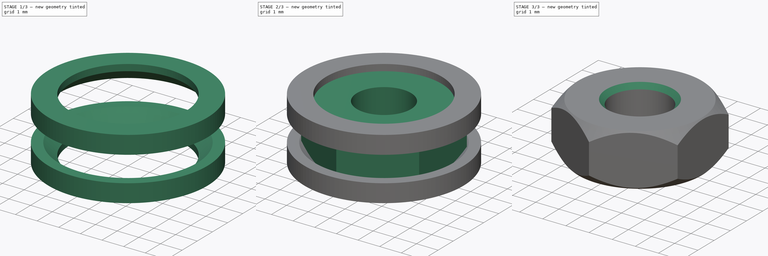
[diagram: build sequence overview — one tinted view per stage of 3, left to right]
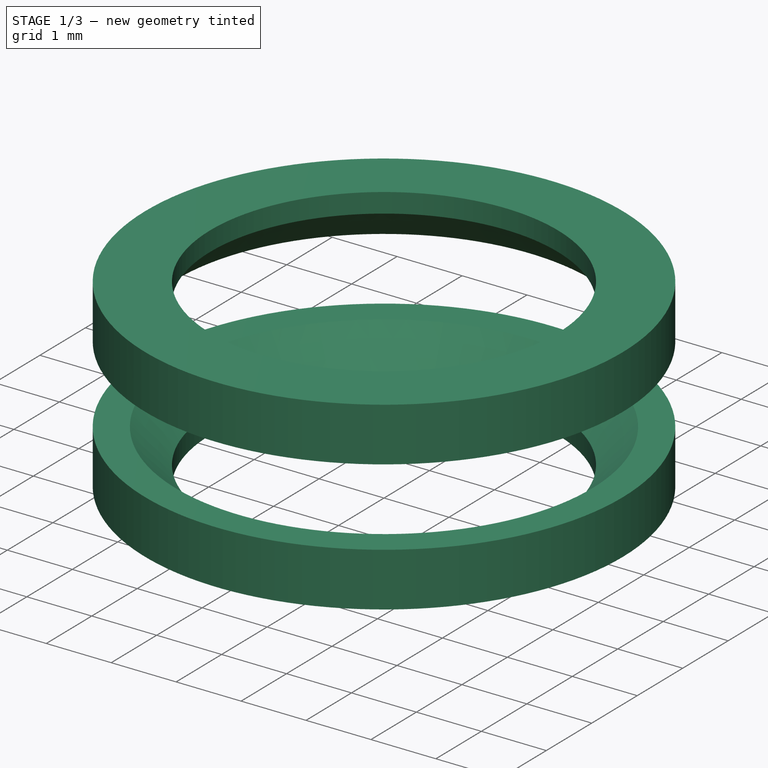
[diagram: stage 1 of 3 — iso view after this stage's code; geometry added in this stage tinted green]
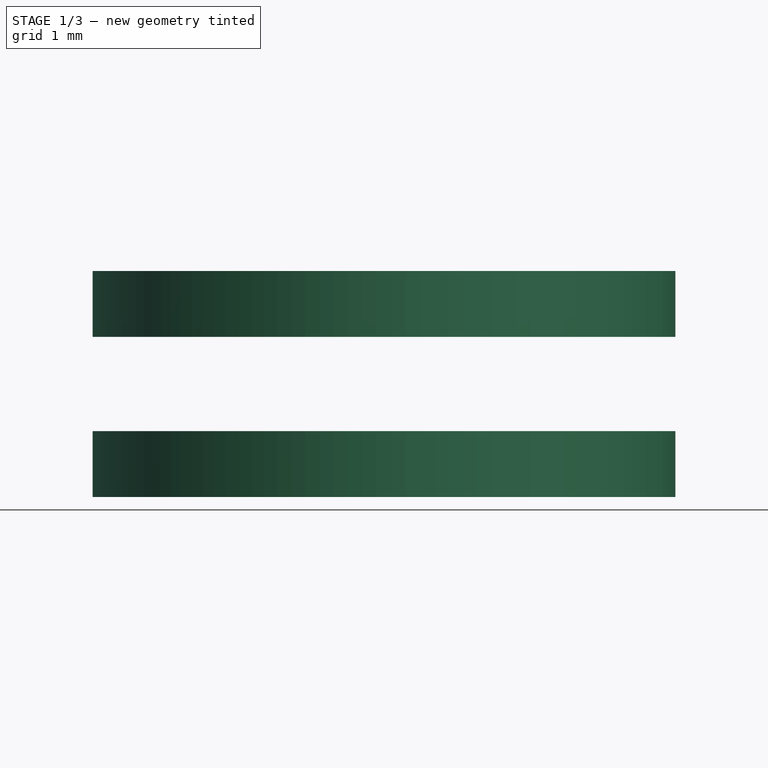
[diagram: stage 1 of 3 — front view after this stage's code; geometry added in this stage tinted green]
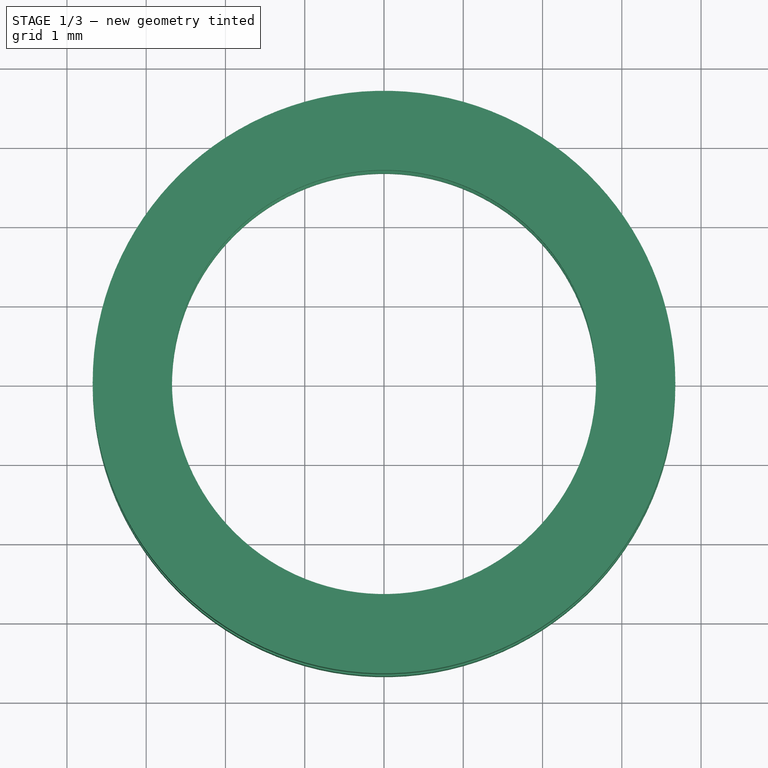
[diagram: stage 1 of 3 — top view after this stage's code; geometry added in this stage tinted green]
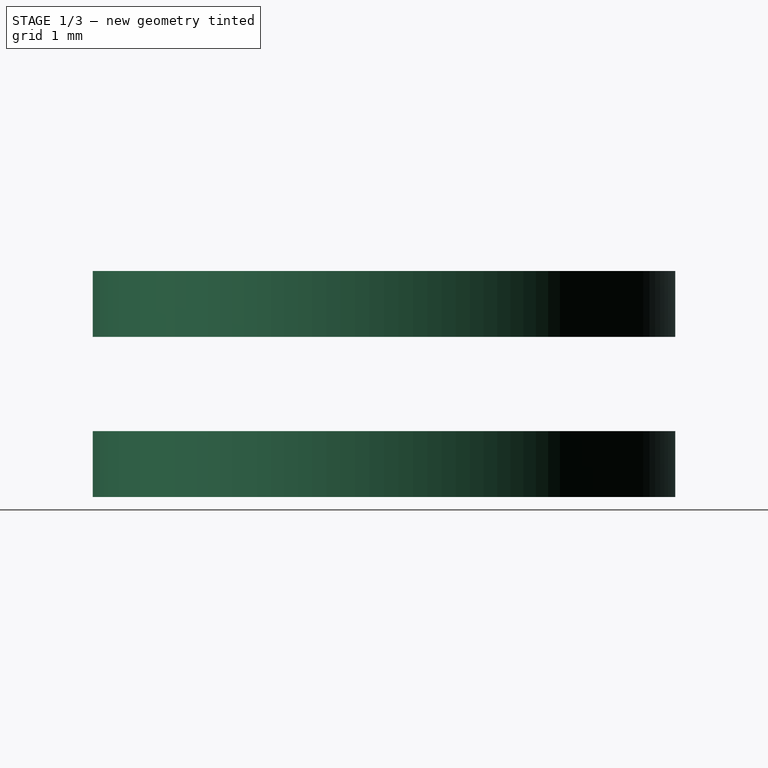
[diagram: stage 1 of 3 — right view after this stage's code; geometry added in this stage tinted green]
FCSTD DOCUMENT  (FreeCAD 0.14R3702 (Git))
Label: M3-hex-nut
License: CC-BY 3.0
LicenseURL: http://creativecommons.org/licenses/by/3.0/
objects: Sketcher::SketchObject×3, PartDesign::Chamfer×2, PartDesign::Pad×1, PartDesign::Pocket×1, Part::Feature×1, PartDesign::Revolution×1, Part::Mirroring×1, Part::MultiFuse×1, Part::Cut×1
note: 15 computed .brp shape members not serialized (recipe doc carries the construction recipe); baked Part::Feature solids carry a one-line shape summary decoded from their .brp

FEATURE [Part::Feature] Face  label="nut-section"
  shape: bbox 1.475 x 2e-07 x 2.25 mm, 1 faces, 0 solids (baked)
FEATURE [Sketcher::SketchObject] Sketch002  label="nut-chamfer-sketch"
  ExternalGeometry = -> [Face]
  Placement = pos=(0,0,0) rot=(0,0.707107,0.707107;3.14159rad)
  Support = -> Face [Face1]
  sketch-geometry (5):
    g0: LineSegment StartX=2.675 StartY=1.125 StartZ=0 EndX=2.675 EndY=1.425 EndZ=0
    g1: LineSegment StartX=2.675 StartY=1.425 StartZ=0 EndX=3.675 EndY=1.425 EndZ=0
    g2: LineSegment StartX=3.675 StartY=1.425 StartZ=0 EndX=3.675 EndY=0.594349 EndZ=0
    g3: LineSegment StartX=3.20565 StartY=0.594349 StartZ=0 EndX=3.675 EndY=0.594349 EndZ=0
    g4: LineSegment StartX=2.675 StartY=1.125 StartZ=0 EndX=3.20565 EndY=0.594349 EndZ=0
  constraints (14):
    c: Vertical(g0)
    c: Coincident(g0,g1)
    c: Horizontal(g1)
    c: Coincident(g1,g2)
    c: Vertical(g2)
    c: DistanceX(g1) = 1
    c: DistanceY(g0) = 0.3
    c: Horizontal(g3)
    c: Coincident(g3,g2)
    c: Coincident(g4,g0)
    c: Coincident(g4,g3)
    c: Angle(g-3,g4) = 2.35619
    c: PointOnObject(g0,g-3)
    c: DistanceX(g0,g-3) = 0.05
FEATURE [PartDesign::Revolution] Revolution  label="nut-chamfer"
  Angle = 360
  Axis = (0,0,1)
  Base = (0,0,0)
  ReferenceAxis = -> Sketch002 [V_Axis]
  Reversed = true
  Sketch = -> Sketch002
FEATURE [Part::Mirroring] Part__Mirroring  label="nut-chamfer (Mirror #1)"
  Base = (0,0,0)
  Normal = (0,0,1)
  Source = -> Revolution
FEATURE [Part::MultiFuse] Fusion  label="top-bottom-chamfer"
  Shapes = -> [Part__Mirroring,Revolution]
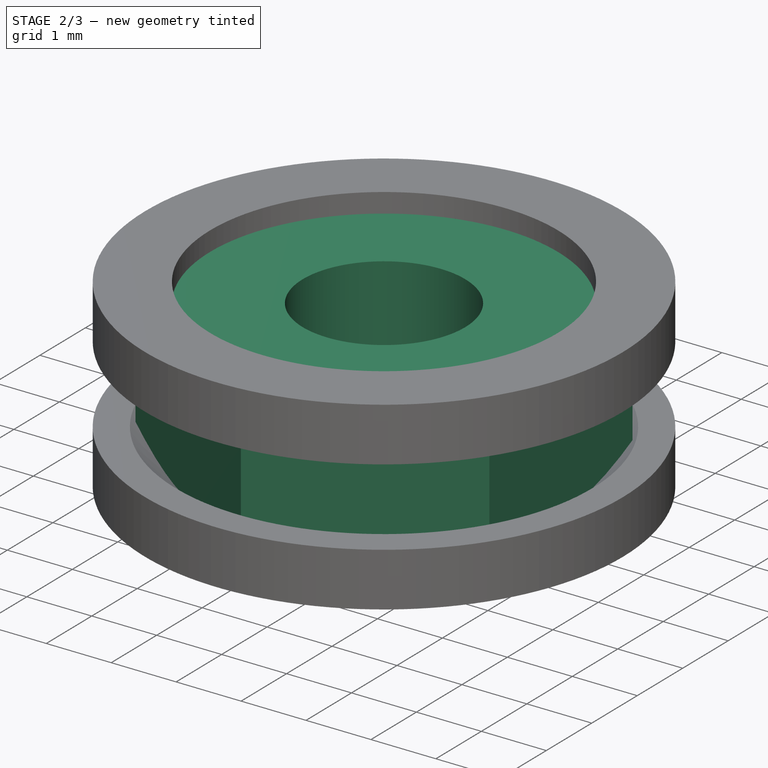
[diagram: stage 2 of 3 — iso view after this stage's code; geometry added in this stage tinted green]
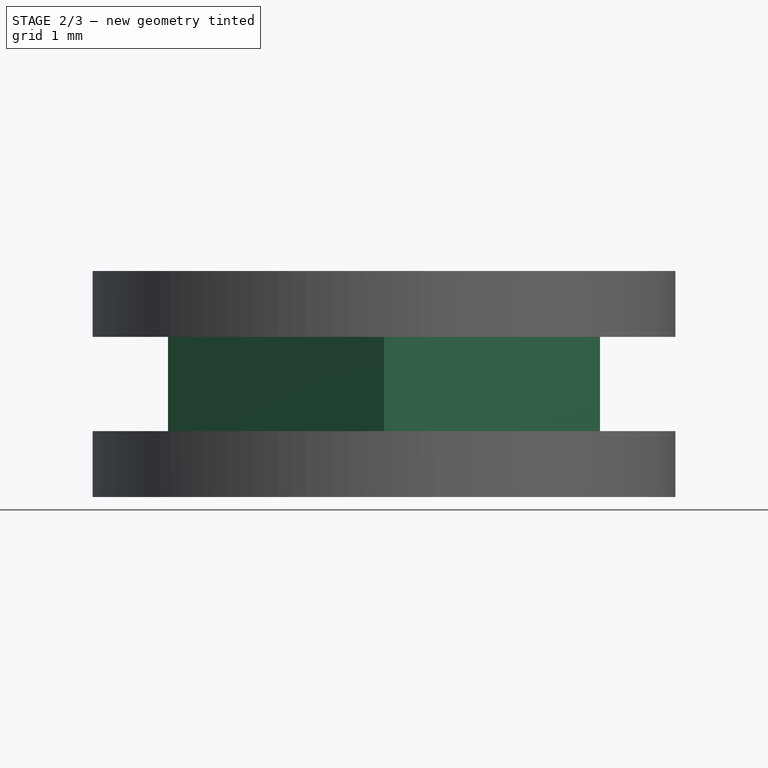
[diagram: stage 2 of 3 — front view after this stage's code; geometry added in this stage tinted green]
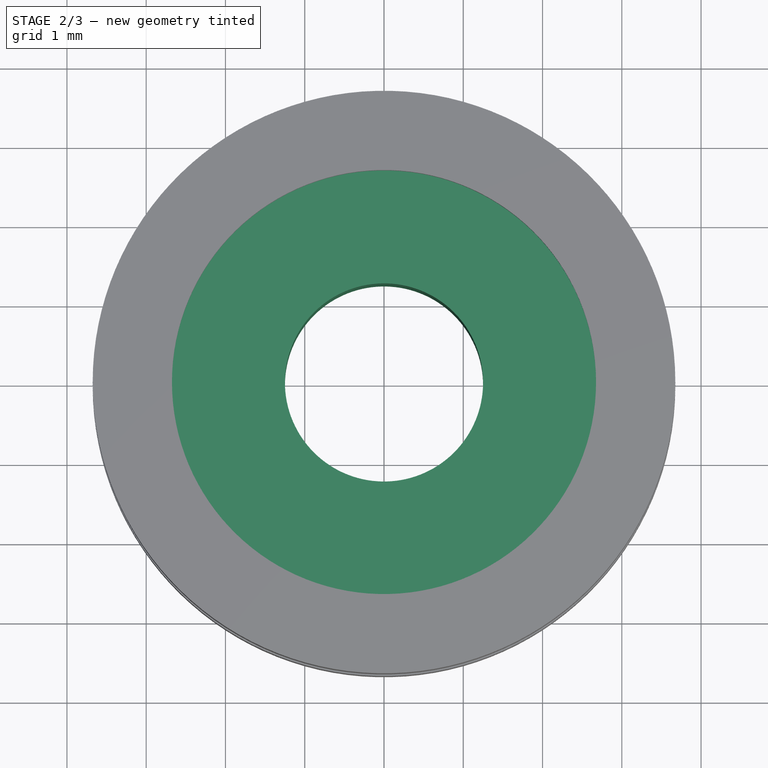
[diagram: stage 2 of 3 — top view after this stage's code; geometry added in this stage tinted green]
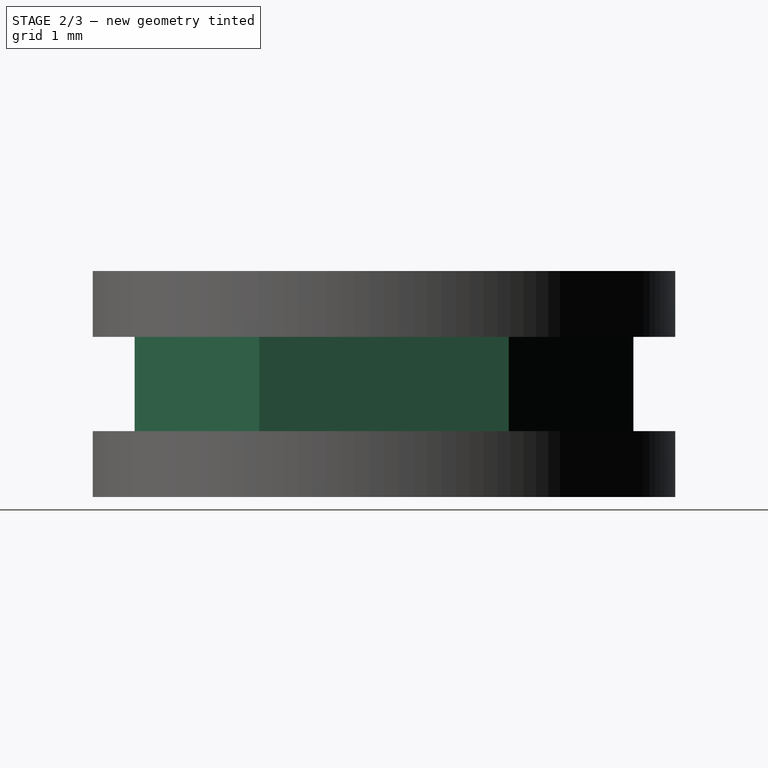
[diagram: stage 2 of 3 — right view after this stage's code; geometry added in this stage tinted green]
FEATURE [Sketcher::SketchObject] Sketch  label="M3-nut-body-sketch"
  sketch-geometry (6):
    g0: LineSegment StartX=0 StartY=3.14656 StartZ=0 EndX=-2.725 EndY=1.57328 EndZ=0
    g1: LineSegment StartX=-2.725 StartY=1.57328 StartZ=0 EndX=-2.725 EndY=-1.57328 EndZ=0
    g2: LineSegment StartX=-2.725 StartY=-1.57328 StartZ=0 EndX=0 EndY=-3.14656 EndZ=0
    g3: LineSegment StartX=0 StartY=3.14656 StartZ=0 EndX=2.725 EndY=1.57328 EndZ=0
    g4: LineSegment StartX=2.725 StartY=1.57328 StartZ=0 EndX=2.725 EndY=-1.57328 EndZ=0
    g5: LineSegment StartX=2.725 StartY=-1.57328 StartZ=0 EndX=0 EndY=-3.14656 EndZ=0
  constraints (15):
    c: Coincident(g0,g1)
    c: Coincident(g1,g2)
    c: Symmetric(g0,g1,g-1)
    c: Symmetric(g0,g2,g-1)
    c: PointOnObject(g0,g-2)
    c: Angle(g-2,g0) = 2.0944
    c: Equal(g0,g1)
    c: Coincident(g3,g4)
    c: Vertical(g4)
    c: Coincident(g4,g5)
    c: Coincident(g5,g2)
    c: Coincident(g3,g0)
    c: Symmetric(g0,g3,g-2)
    c: Symmetric(g4,g1,g-2)
    c: DistanceX(g0,g3) = 5.45
FEATURE [PartDesign::Pad] Pad  label="M3-nut-body"
  Length = 2.25
  Length2 = 100
  Midplane = true
  Sketch = -> Sketch
  Type = 0
FEATURE [Sketcher::SketchObject] Sketch001  label="M3-drill-sketch"
  Placement = pos=(0,0,1.125) rot=(0,0,1;0rad)
  Support = -> Pad [Face8]
  sketch-geometry (1):
    g0: Circle CenterX=0 CenterY=0 CenterZ=0 NormalX=0 NormalY=0 NormalZ=1 Radius=1.25
  constraints (2):
    c: Coincident(g0,g-1)
    c: Radius(g0) = 1.25
FEATURE [PartDesign::Pocket] Pocket  label="M3-drill"
  Length = 5
  Sketch = -> Sketch001
  Type = 1
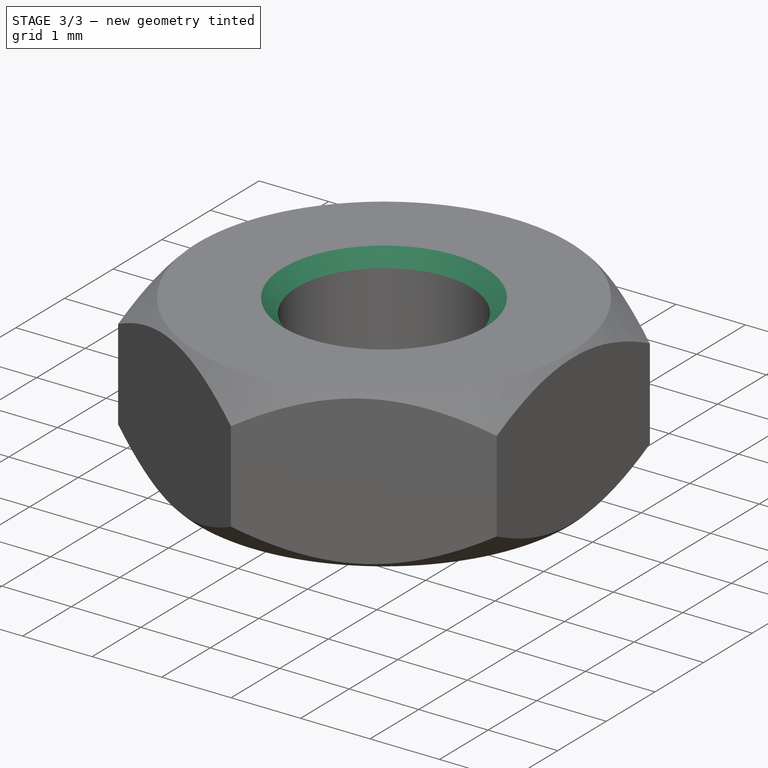
[diagram: stage 3 of 3 — iso view after this stage's code; geometry added in this stage tinted green]
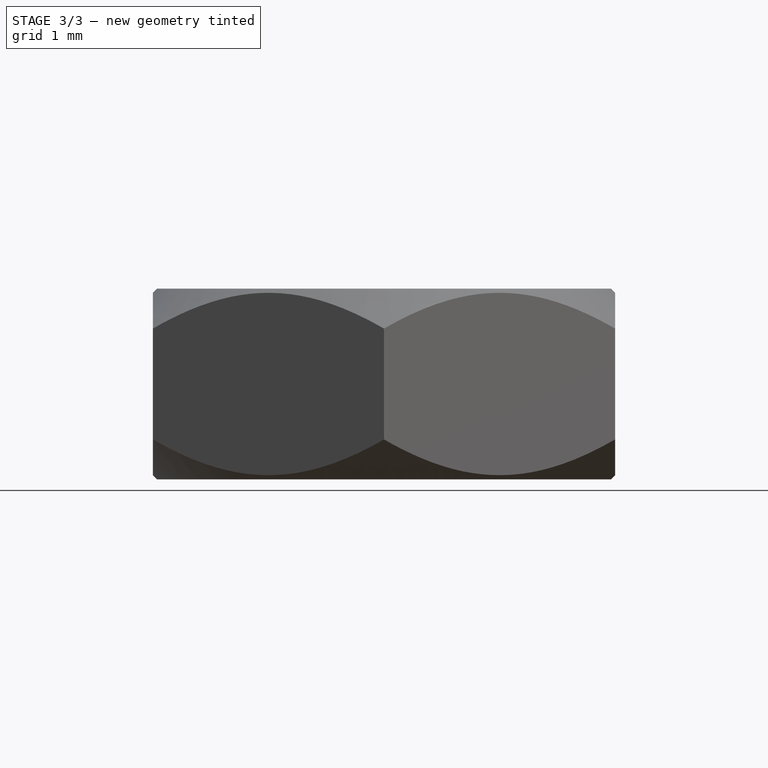
[diagram: stage 3 of 3 — front view after this stage's code; geometry added in this stage tinted green]
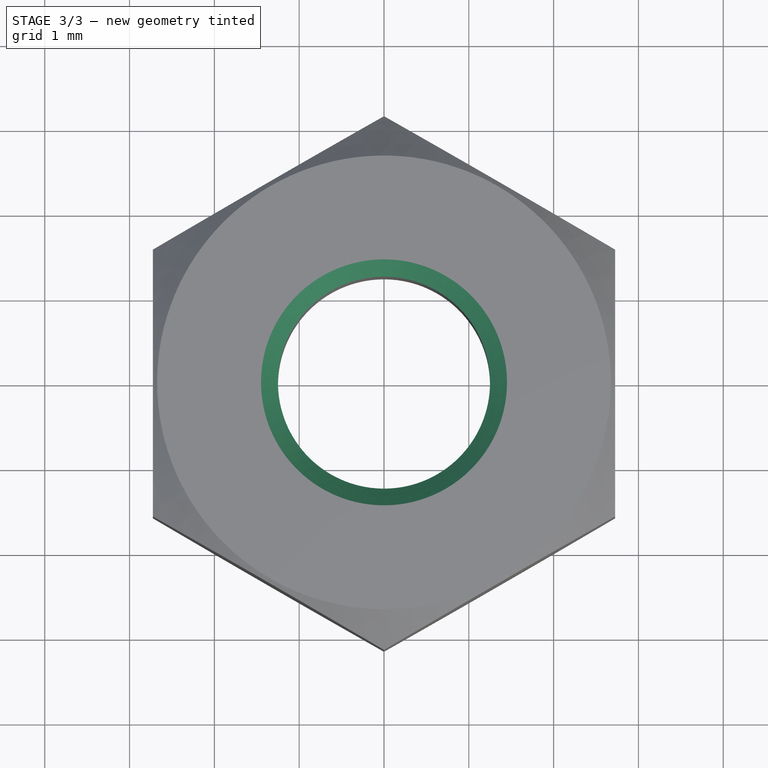
[diagram: stage 3 of 3 — top view after this stage's code; geometry added in this stage tinted green]
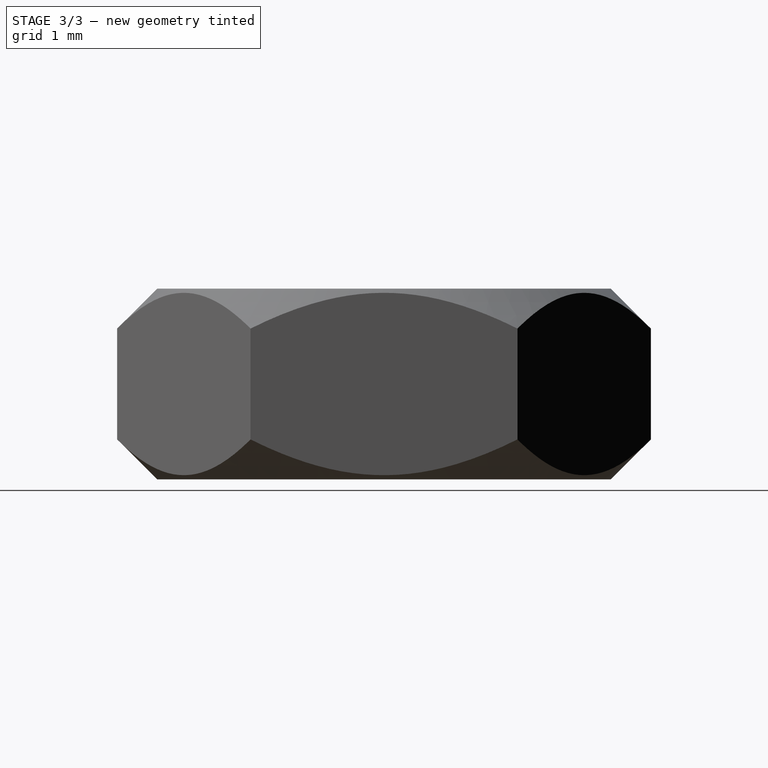
[diagram: stage 3 of 3 — right view after this stage's code; geometry added in this stage tinted green]
FEATURE [PartDesign::Chamfer] Chamfer
  Base = -> Pocket [Edge18]
  Size = 0.2
FEATURE [PartDesign::Chamfer] Chamfer001
  Base = -> Chamfer [Edge23]
  Size = 0.2
FEATURE [Part::Cut] Cut  label="M3-hex-nut-final"
  Base = -> Chamfer001
  Tool = -> Fusion
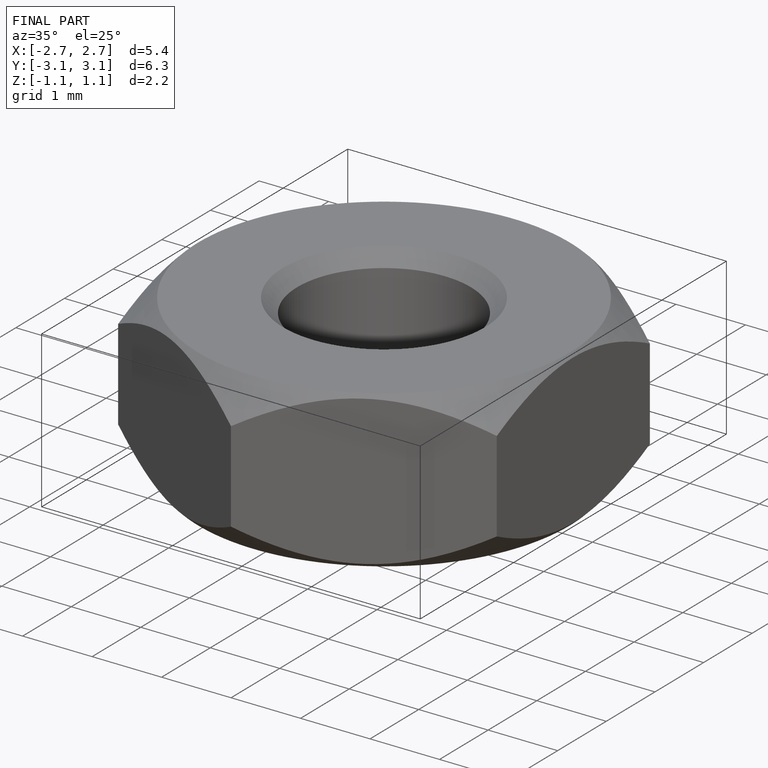
[diagram: finished part — iso view with bounding-box wireframe]
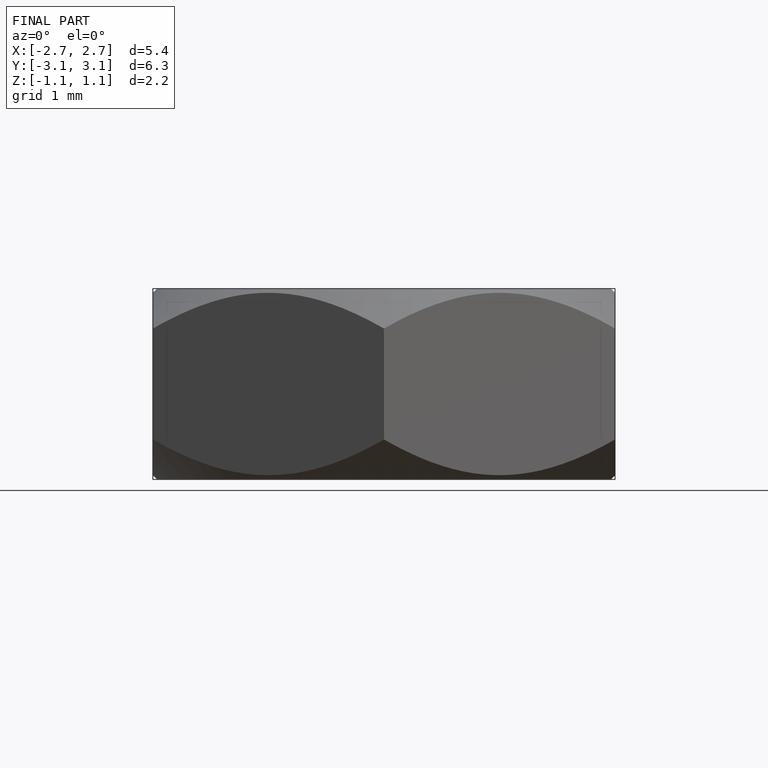
[diagram: finished part — front view with bounding-box wireframe]
